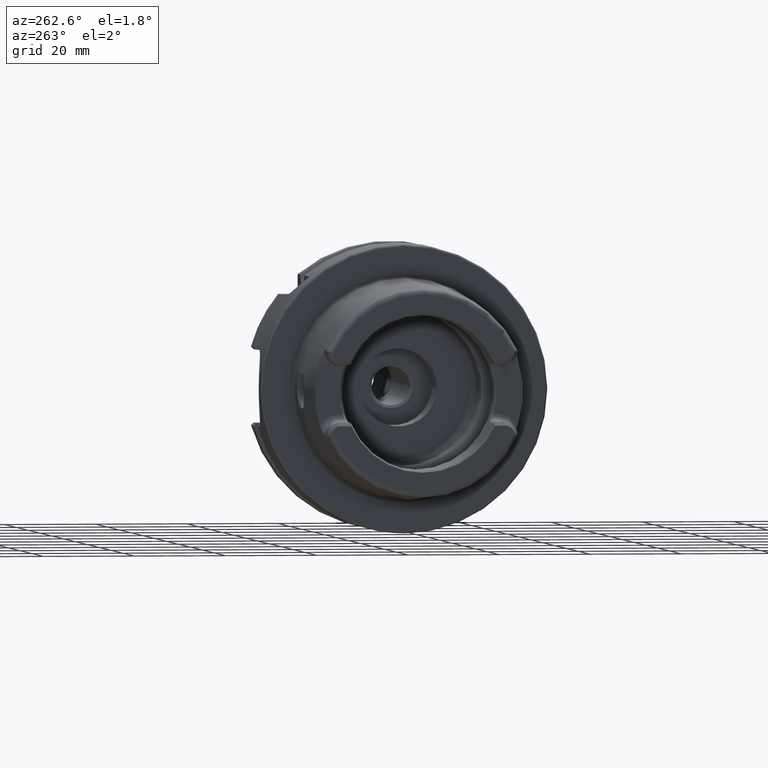
[diagram: clean part render]
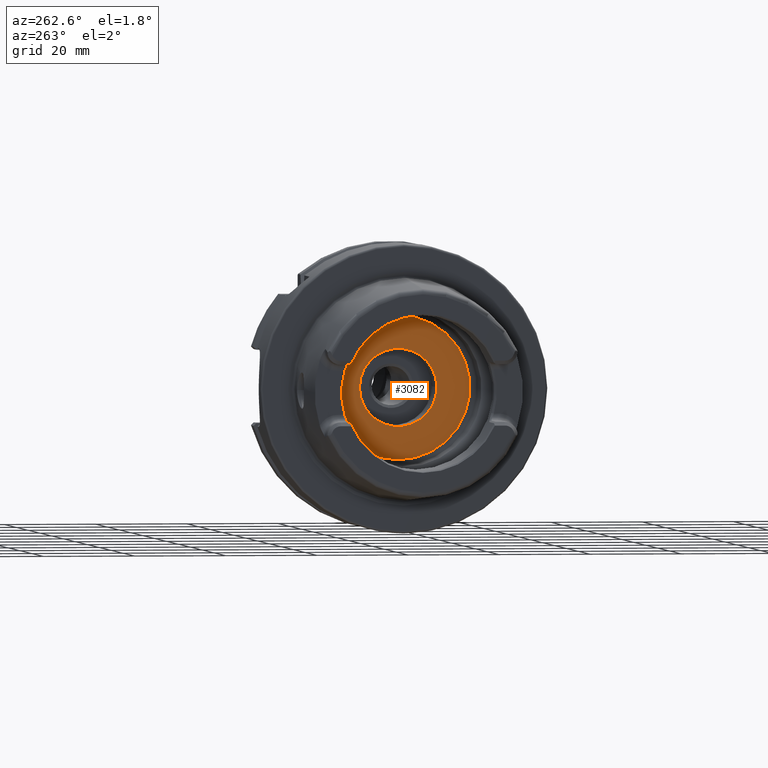
[diagram: same view with one face highlighted and labeled with its STEP entity id]
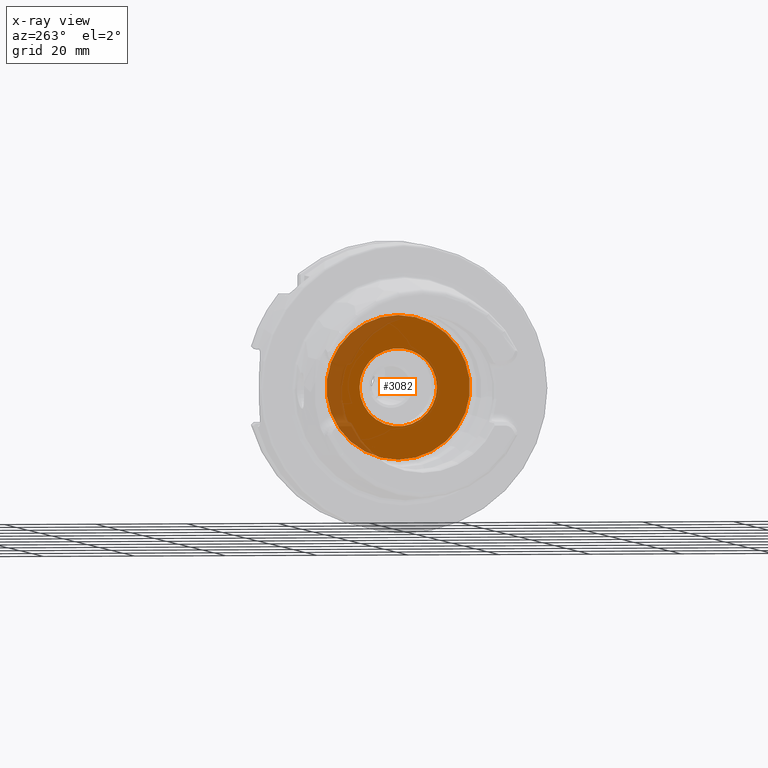
[diagram: x-ray of the same camera — body ghosted, the highlighted face saturated]
A machine part, auxiliary view. The second image highlights one B-rep face of the part: STEP entity #3082.
The next image is the same camera in x-ray: the body ghosted, the highlighted face saturated — about 20% of this face is hidden behind the body in this view.
In plain terms, the highlighted planar face has unit normal (1, 0, 0).
Its self-contained STEP definition (entity closure, byte-faithful):
#260=CARTESIAN_POINT('',(1.E1,0.E0,0.E0));
#261=DIRECTION('',(-1.E0,0.E0,0.E0));
#262=DIRECTION('',(0.E0,0.E0,-1.E0));
#263=AXIS2_PLACEMENT_3D('',#260,#261,#262);
#270=CARTESIAN_POINT('',(1.E1,0.E0,0.E0));
#271=DIRECTION('',(1.E0,0.E0,0.E0));
#272=DIRECTION('',(0.E0,0.E0,-1.E0));
#273=AXIS2_PLACEMENT_3D('',#270,#271,#272);
#275=CARTESIAN_POINT('',(1.E1,0.E0,0.E0));
#276=DIRECTION('',(-1.E0,0.E0,0.E0));
#277=DIRECTION('',(0.E0,1.E0,0.E0));
#278=AXIS2_PLACEMENT_3D('',#275,#276,#277);
#280=CARTESIAN_POINT('',(1.E1,0.E0,0.E0));
#281=DIRECTION('',(-1.E0,0.E0,0.E0));
#282=DIRECTION('',(0.E0,-1.E0,0.E0));
#283=AXIS2_PLACEMENT_3D('',#280,#281,#282);
#2426=CARTESIAN_POINT('',(1.E1,0.E0,-1.575E1));
#2427=CARTESIAN_POINT('',(1.E1,0.E0,1.575E1));
#2428=VERTEX_POINT('',#2426);
#2429=VERTEX_POINT('',#2427);
#2430=CARTESIAN_POINT('',(1.E1,8.5E0,0.E0));
#2431=CARTESIAN_POINT('',(1.E1,-8.5E0,0.E0));
#2432=VERTEX_POINT('',#2430);
#2433=VERTEX_POINT('',#2431);
#3067=CARTESIAN_POINT('',(1.E1,0.E0,0.E0));
#3068=DIRECTION('',(1.E0,0.E0,0.E0));
#3069=DIRECTION('',(0.E0,0.E0,1.E0));
#3070=AXIS2_PLACEMENT_3D('',#3067,#3068,#3069);
#3071=PLANE('',#3070);
#3072=ORIENTED_EDGE('',*,*,#3047,.F.);
#3073=ORIENTED_EDGE('',*,*,#3061,.T.);
#3074=EDGE_LOOP('',(#3072,#3073));
#3075=FACE_OUTER_BOUND('',#3074,.F.);
#3077=ORIENTED_EDGE('',*,*,#3076,.T.);
#3079=ORIENTED_EDGE('',*,*,#3078,.T.);
#3080=EDGE_LOOP('',(#3077,#3079));
#3081=FACE_BOUND('',#3080,.F.);
#3082=ADVANCED_FACE('',(#3075,#3081),#3071,.F.);
#264=CIRCLE('',#263,1.575E1);
#274=CIRCLE('',#273,1.575E1);
#279=CIRCLE('',#278,8.5E0);
#284=CIRCLE('',#283,8.5E0);
#3047=EDGE_CURVE('',#2428,#2429,#264,.T.);
#3061=EDGE_CURVE('',#2428,#2429,#274,.T.);
#3076=EDGE_CURVE('',#2432,#2433,#279,.T.);
#3078=EDGE_CURVE('',#2433,#2432,#284,.T.);